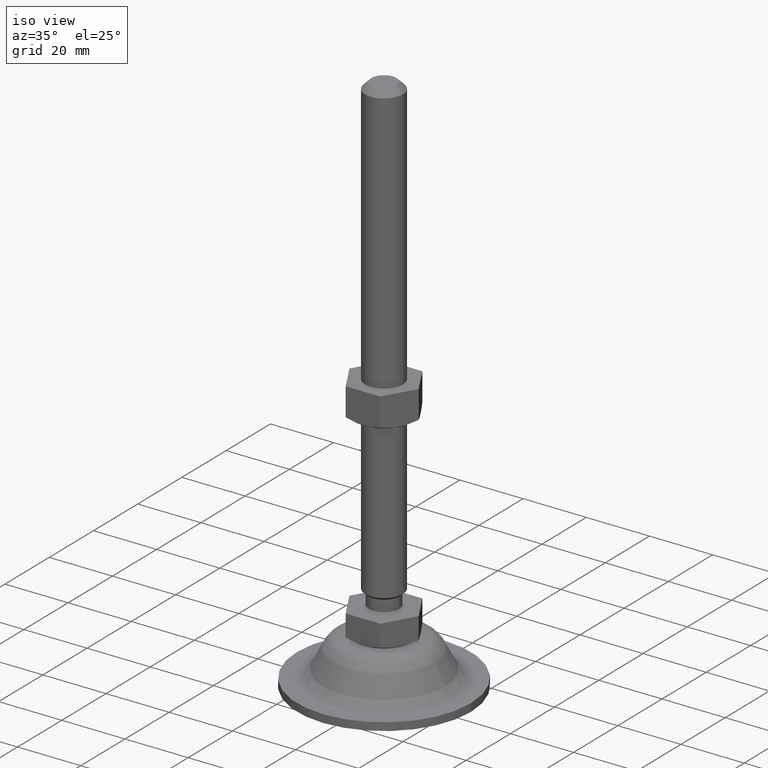
[diagram: clean part render]
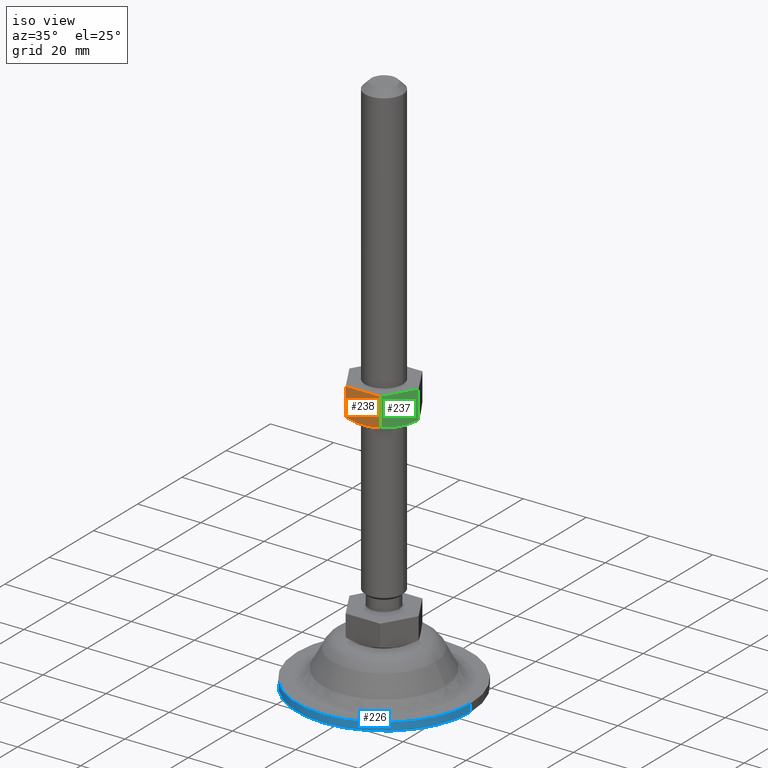
[diagram: same view with three faces highlighted in distinct colors, each labeled with its STEP entity id]
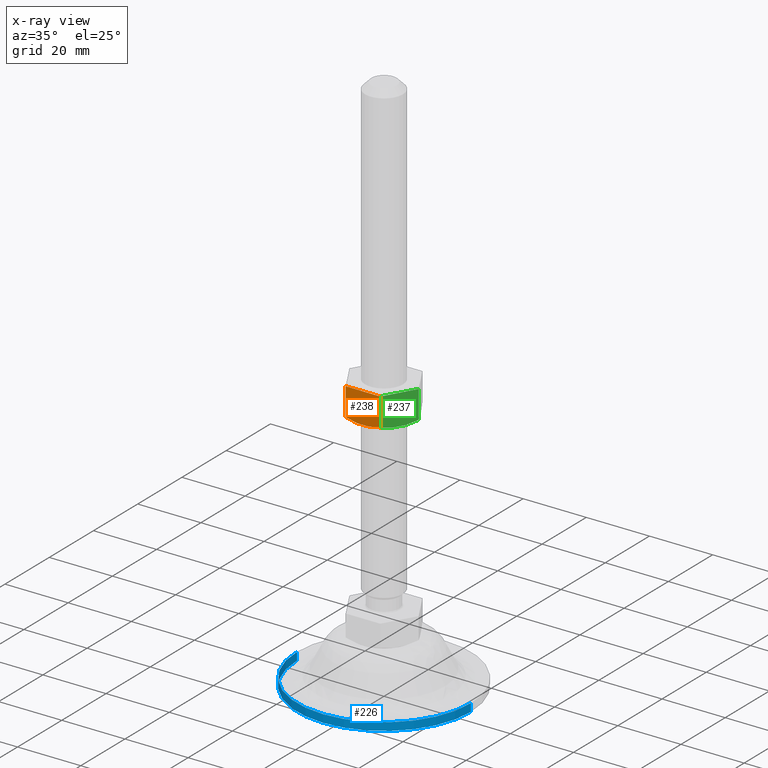
[diagram: x-ray of the same camera — body ghosted, the three highlighted faces saturated]
A machine part, iso view with three faces highlighted in distinct colors.
The next image is the same camera in x-ray (body ghosted, the three faces saturated) — at least one of them is partly hidden behind the body in this view.
Their STEP definitions:

[orange] entity #238 — the highlighted planar face has unit normal (-0, 1, 0).
#238=ADVANCED_FACE('',(#1148),#1147,.F.);
#1147=PLANE('',#2025);
#1148=FACE_OUTER_BOUND('',#2026,.T.);
#2022=CARTESIAN_POINT('',(6.58179306876E+00,-9.50000000000E+00,5.43174264435E+01));
#2023=DIRECTION('',(-8.80830769996E-14,1.00000000000E+00,0.00000000000E+00));
#2024=DIRECTION('',(-1.00000000000E+00,-8.80830769996E-14,0.00000000000E+00));
#2025=AXIS2_PLACEMENT_3D('',#2022,#2023,#2024);
#2026=EDGE_LOOP('',(#2477,#2478,#2479,#2480));
#2477=ORIENTED_EDGE('',*,*,#2721,.F.);
#2478=ORIENTED_EDGE('',*,*,#2722,.T.);
#2479=ORIENTED_EDGE('',*,*,#2718,.T.);
#2480=ORIENTED_EDGE('',*,*,#2703,.T.);
#2703=EDGE_CURVE('',#4016,#4009,#4017,.T.);
#2718=EDGE_CURVE('',#4118,#4016,#4119,.T.);
#2721=EDGE_CURVE('',#4138,#4009,#4139,.T.);
#2722=EDGE_CURVE('',#4138,#4118,#4145,.T.);
#4009=VERTEX_POINT('',#5036);
#4016=VERTEX_POINT('',#5040);
#4017=LINE('',#5041,#5042);
#4118=VERTEX_POINT('',#5119);
#4119=LINE('',#5120,#5121);
#4138=VERTEX_POINT('',#5139);
#4139=LINE('',#5140,#5141);
#4145=(BOUNDED_CURVE() B_SPLINE_CURVE(3,(#5143,#5144,#5145,#5146,#5147,#5148,#5149,#5150,#5151,#5152),.UNSPECIFIED.,.F.,.F.) B_SPLINE_CURVE_WITH_KNOTS((4,2,2,2,4),(9.97147885458E-03,1.27476735156E-02,1.55238681765E-02,1.83000628375E-02,2.10762574985E-02),.UNSPECIFIED.) CURVE() GEOMETRIC_REPRESENTATION_ITEM() RATIONAL_B_SPLINE_CURVE((1.00000000000E+00,1.00000000000E+00,1.00000000000E+00,1.00000000000E+00,1.00000000000E+00,1.00000000000E+00,1.00000000000E+00,1.00000000000E+00,1.00000000000E+00,1.00000000000E+00)) REPRESENTATION_ITEM('') );
#5036=CARTESIAN_POINT('',(-5.48482755730E+00,-9.50000000000E+00,6.49999998970E+01));
#5040=CARTESIAN_POINT('',(5.48482755730E+00,-9.50000000000E+00,6.49999998970E+01));
#5041=CARTESIAN_POINT('',(5.48482755730E+00,-9.50000000000E+00,6.49999998970E+01));
#5042=VECTOR('',#5043,1.09696551146E+01);
#5043=DIRECTION('',(-1.00000000000E+00,-8.80919327489E-14,0.00000000000E+00));
#5119=CARTESIAN_POINT('',(5.48482755730E+00,-9.50000000000E+00,5.61371802922E+01));
#5120=CARTESIAN_POINT('',(5.48482755730E+00,-9.50000000000E+00,5.61371802922E+01));
#5121=VECTOR('',#5122,8.86281960477E+00);
#5122=DIRECTION('',(0.00000000000E+00,0.00000000000E+00,1.00000000000E+00));
#5139=CARTESIAN_POINT('',(-5.48482755730E+00,-9.50000000000E+00,5.61371802922E+01));
#5140=CARTESIAN_POINT('',(-5.48482755730E+00,-9.50000000000E+00,5.61371802922E+01));
#5141=VECTOR('',#5142,8.86281960479E+00);
#5142=DIRECTION('',(0.00000000000E+00,0.00000000000E+00,1.00000000000E+00));
#5143=CARTESIAN_POINT('',(-5.48482755730E+00,-9.50000000000E+00,5.61371802922E+01));
#5144=CARTESIAN_POINT('',(-4.59192443482E+00,-9.50000000000E+00,5.58794214028E+01));
#5145=CARTESIAN_POINT('',(-3.67815546426E+00,-9.50000000000E+00,5.56634801129E+01));
#5146=CARTESIAN_POINT('',(-1.84699272881E+00,-9.50000000000E+00,5.53682713978E+01));
#5147=CARTESIAN_POINT('',(-9.25838032837E-01,-9.50000000000E+00,5.52885694847E+01));
#5148=CARTESIAN_POINT('',(9.29572260568E-01,-9.50000000000E+00,5.52887800208E+01));
#5149=CARTESIAN_POINT('',(1.86953253222E+00,-9.50000000000E+00,5.53708255264E+01));
#5150=CARTESIAN_POINT('',(3.70004096456E+00,-9.50000000000E+00,5.56681144882E+01));
#5151=CARTESIAN_POINT('',(4.59813882849E+00,-9.50000000000E+00,5.58812153435E+01));
#5152=CARTESIAN_POINT('',(5.48482755730E+00,-9.50000000000E+00,5.61371802922E+01));

[blue] entity #226 — the highlighted cylindrical surface (partial cylindrical patch) has radius 27.5 mm, axis along (0, 0, 1).
#226=ADVANCED_FACE('',(#1026),#1025,.T.);
#1025=CYLINDRICAL_SURFACE('',#1867,2.75000000000E+01);
#1026=FACE_OUTER_BOUND('',#1868,.T.);
#1864=CARTESIAN_POINT('',(-2.70574673777E-11,0.00000000000E+00,0.00000000000E+00));
#1865=DIRECTION('',(0.00000000000E+00,-0.00000000000E+00,1.00000000000E+00));
#1866=DIRECTION('',(1.00000000000E+00,-0.00000000000E+00,-0.00000000000E+00));
#1867=AXIS2_PLACEMENT_3D('',#1864,#1865,#1866);
#1868=EDGE_LOOP('',(#2425,#2426,#2427,#2428));
#2425=ORIENTED_EDGE('',*,*,#2666,.F.);
#2426=ORIENTED_EDGE('',*,*,#2689,.T.);
#2427=ORIENTED_EDGE('',*,*,#2669,.T.);
#2428=ORIENTED_EDGE('',*,*,#2690,.F.);
#2666=EDGE_CURVE('',#3766,#3765,#3773,.T.);
#2669=EDGE_CURVE('',#3793,#3794,#3795,.T.);
#2689=EDGE_CURVE('',#3766,#3793,#3925,.T.);
#2690=EDGE_CURVE('',#3765,#3794,#3931,.T.);
#3765=VERTEX_POINT('',#4887);
#3766=VERTEX_POINT('',#4888);
#3773=CIRCLE('',#4896,2.75000000000E+01);
#3793=VERTEX_POINT('',#4907);
#3794=VERTEX_POINT('',#4908);
#3795=CIRCLE('',#4912,2.75000000000E+01);
#3925=(BOUNDED_CURVE() B_SPLINE_CURVE(1,(#4989,#4990),.UNSPECIFIED.,.F.,.F.) B_SPLINE_CURVE_WITH_KNOTS((2,2),(8.33333233997E-02,9.16666663280E-01),.UNSPECIFIED.) CURVE() GEOMETRIC_REPRESENTATION_ITEM() RATIONAL_B_SPLINE_CURVE((1.00000000000E+00,1.00000000000E+00)) REPRESENTATION_ITEM('') );
#3931=(BOUNDED_CURVE() B_SPLINE_CURVE(1,(#4991,#4992),.UNSPECIFIED.,.F.,.F.) B_SPLINE_CURVE_WITH_KNOTS((2,2),(8.33333333333E-02,9.16666666667E-01),.UNSPECIFIED.) CURVE() GEOMETRIC_REPRESENTATION_ITEM() RATIONAL_B_SPLINE_CURVE((7.50000000000E-01,7.50000000000E-01)) REPRESENTATION_ITEM('') );
#4887=CARTESIAN_POINT('',(-2.75000000001E+01,0.00000000000E+00,-2.30000002000E+01));
#4888=CARTESIAN_POINT('',(2.75000000000E+01,1.18423789293E-15,-2.30000002000E+01));
#4893=CARTESIAN_POINT('',(-2.70574673777E-11,0.00000000000E+00,-2.30000002000E+01));
#4894=DIRECTION('',(-0.00000000000E+00,0.00000000000E+00,-1.00000000000E+00));
#4895=DIRECTION('',(-1.00000000000E+00,-1.22460635382E-16,0.00000000000E+00));
#4896=AXIS2_PLACEMENT_3D('',#4893,#4894,#4895);
#4907=CARTESIAN_POINT('',(2.75000000000E+01,0.00000000000E+00,-2.05000003431E+01));
#4908=CARTESIAN_POINT('',(-2.75000000001E+01,0.00000000000E+00,-2.05000003431E+01));
#4909=CARTESIAN_POINT('',(-2.70574673777E-11,0.00000000000E+00,-2.05000003431E+01));
#4910=DIRECTION('',(-0.00000000000E+00,0.00000000000E+00,-1.00000000000E+00));
#4911=DIRECTION('',(-1.00000000000E+00,-1.22460635382E-16,0.00000000000E+00));
#4912=AXIS2_PLACEMENT_3D('',#4909,#4910,#4911);
#4989=CARTESIAN_POINT('',(2.75000000000E+01,0.00000000000E+00,-2.30000002298E+01));
#4990=CARTESIAN_POINT('',(2.75000000000E+01,0.00000000000E+00,-2.05000003533E+01));
#4991=CARTESIAN_POINT('',(-2.75000000001E+01,0.00000000000E+00,-2.30000002000E+01));
#4992=CARTESIAN_POINT('',(-2.75000000001E+01,0.00000000000E+00,-2.05000003431E+01));

[green] entity #237 — the highlighted planar face has unit normal (-0.866, 0.5, 0).
#237=ADVANCED_FACE('',(#1138),#1137,.F.);
#1137=PLANE('',#2020);
#1138=FACE_OUTER_BOUND('',#2021,.T.);
#2017=CARTESIAN_POINT('',(1.15181378703E+01,9.50000000000E-01,5.43172190659E+01));
#2018=DIRECTION('',(-8.66025403784E-01,5.00000000000E-01,0.00000000000E+00));
#2019=DIRECTION('',(-5.00000000000E-01,-8.66025403784E-01,0.00000000000E+00));
#2020=AXIS2_PLACEMENT_3D('',#2017,#2018,#2019);
#2021=EDGE_LOOP('',(#2473,#2474,#2475,#2476));
#2473=ORIENTED_EDGE('',*,*,#2718,.F.);
#2474=ORIENTED_EDGE('',*,*,#2719,.T.);
#2475=ORIENTED_EDGE('',*,*,#2720,.T.);
#2476=ORIENTED_EDGE('',*,*,#2704,.T.);
#2704=EDGE_CURVE('',#4023,#4016,#4024,.T.);
#2718=EDGE_CURVE('',#4118,#4016,#4119,.T.);
#2719=EDGE_CURVE('',#4118,#4125,#4126,.T.);
#2720=EDGE_CURVE('',#4125,#4023,#4132,.T.);
#4016=VERTEX_POINT('',#5040);
#4023=VERTEX_POINT('',#5044);
#4024=LINE('',#5045,#5046);
#4118=VERTEX_POINT('',#5119);
#4119=LINE('',#5120,#5121);
#4125=VERTEX_POINT('',#5123);
#4126=(BOUNDED_CURVE() B_SPLINE_CURVE(3,(#5124,#5125,#5126,#5127,#5128,#5129,#5130,#5131,#5132,#5133,#5134,#5135),.UNSPECIFIED.,.F.,.F.) B_SPLINE_CURVE_WITH_KNOTS((4,2,2,2,2,4),(2.38073066787E-07,2.76992422320E-03,5.53961037333E-03,6.92445344839E-03,8.30929652346E-03,1.10789826736E-02),.UNSPECIFIED.) CURVE() GEOMETRIC_REPRESENTATION_ITEM() RATIONAL_B_SPLINE_CURVE((1.00000000000E+00,1.00000000000E+00,1.00000000000E+00,1.00000000000E+00,1.00000000000E+00,1.00000000000E+00,1.00000000000E+00,1.00000000000E+00,1.00000000000E+00,1.00000000000E+00,1.00000000000E+00,1.00000000000E+00)) REPRESENTATION_ITEM('') );
#4132=LINE('',#5136,#5137);
#5040=CARTESIAN_POINT('',(5.48482755730E+00,-9.50000000000E+00,6.49999998970E+01));
#5044=CARTESIAN_POINT('',(1.09696551146E+01,-1.13686837722E-13,6.49999998970E+01));
#5045=CARTESIAN_POINT('',(1.09696551146E+01,-1.71648217719E-13,6.49999998970E+01));
#5046=VECTOR('',#5047,1.09696551146E+01);
#5047=DIRECTION('',(-5.00000000000E-01,-8.66025403784E-01,0.00000000000E+00));
#5119=CARTESIAN_POINT('',(5.48482755730E+00,-9.50000000000E+00,5.61371802922E+01));
#5120=CARTESIAN_POINT('',(5.48482755730E+00,-9.50000000000E+00,5.61371802922E+01));
#5121=VECTOR('',#5122,8.86281960477E+00);
#5122=DIRECTION('',(0.00000000000E+00,0.00000000000E+00,1.00000000000E+00));
#5123=CARTESIAN_POINT('',(1.09696551146E+01,-1.82603464190E-13,5.61371802922E+01));
#5124=CARTESIAN_POINT('',(5.48482755730E+00,-9.50000000000E+00,5.61371802922E+01));
#5125=CARTESIAN_POINT('',(5.93261166843E+00,-8.72441516871E+00,5.58786520549E+01));
#5126=CARTESIAN_POINT('',(6.38366049231E+00,-7.94317568905E+00,5.56655779405E+01));
#5127=CARTESIAN_POINT('',(7.29516507467E+00,-6.36440344107E+00,5.53704010998E+01));
#5128=CARTESIAN_POINT('',(7.75569076577E+00,-5.56674954589E+00,5.52892720352E+01));
#5129=CARTESIAN_POINT('',(8.45515586478E+00,-4.35524045628E+00,5.52883809597E+01));
#5130=CARTESIAN_POINT('',(8.68940799482E+00,-3.94950386527E+00,5.53082138732E+01));
#5131=CARTESIAN_POINT('',(9.15278341314E+00,-3.14691409777E+00,5.53855517614E+01));
#5132=CARTESIAN_POINT('',(9.38291759738E+00,-2.74830999811E+00,5.54429782494E+01));
#5133=CARTESIAN_POINT('',(1.00692229272E+01,-1.55959429742E+00,5.56647283326E+01));
#5134=CARTESIAN_POINT('',(1.05213128146E+01,-7.76551642800E-01,5.58783297845E+01));
#5135=CARTESIAN_POINT('',(1.09696551146E+01,-1.55414245814E-13,5.61371802922E+01));
#5136=CARTESIAN_POINT('',(1.09696551146E+01,-1.13686837722E-13,5.61371802922E+01));
#5137=VECTOR('',#5138,8.86281960477E+00);
#5138=DIRECTION('',(0.00000000000E+00,0.00000000000E+00,1.00000000000E+00));